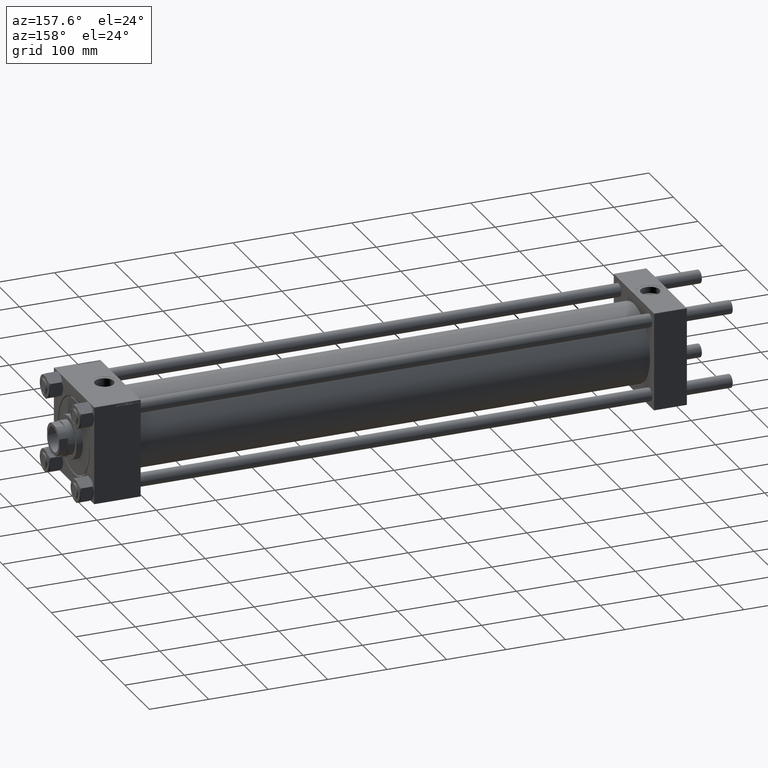
[diagram: clean part render]
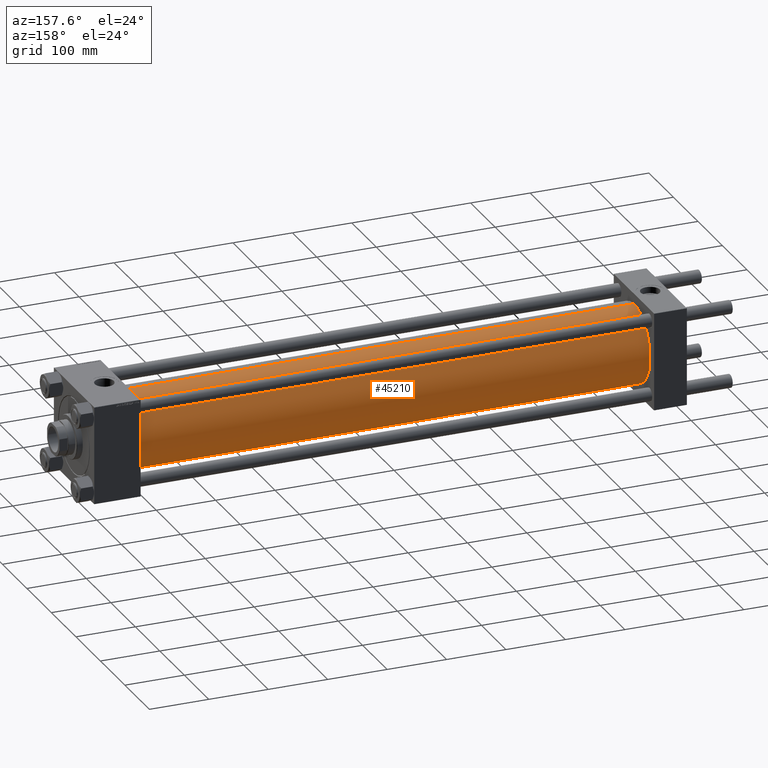
[diagram: same view with one face highlighted and labeled with its STEP entity id]
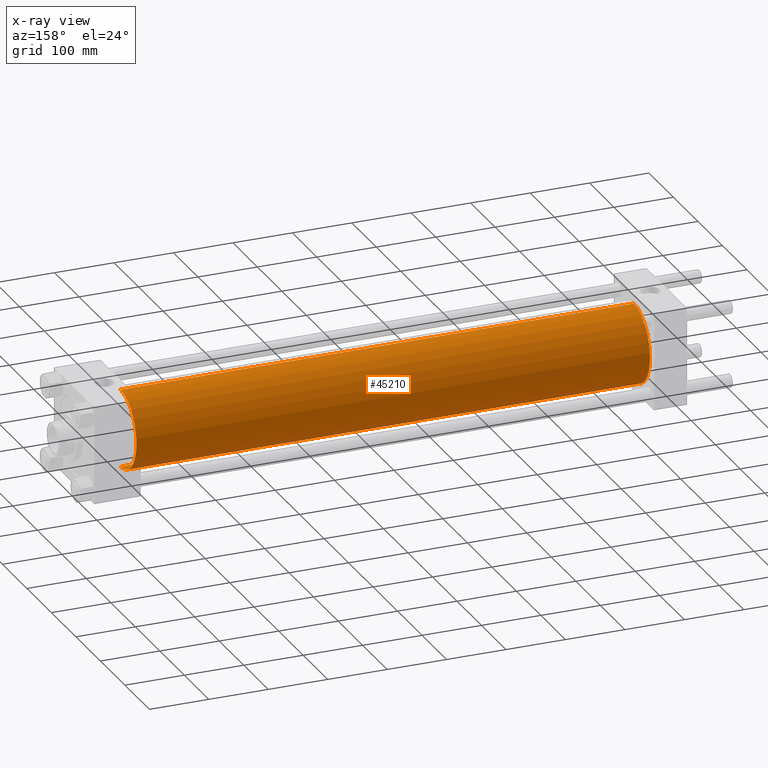
[diagram: x-ray of the same camera — body ghosted, the highlighted face saturated]
A machine part, auxiliary view. The second image highlights one B-rep face of the part: STEP entity #45210.
The next image is the same camera in x-ray: the body ghosted, the highlighted face saturated — about 0% of this face is hidden behind the body in this view.
In plain terms, the highlighted cylindrical surface (partial cylindrical patch) has radius 65.5 mm, axis along (-1, -0, -0).
Its self-contained STEP definition (entity closure, byte-faithful):
#2215 = DIRECTION ( 'NONE',  ( 1.000000000000000000, -0.000000000000000000, -0.000000000000000000 ) ) ;
#2318 = AXIS2_PLACEMENT_3D ( 'NONE', #50056, #7089, #22353 ) ;
#4134 = ORIENTED_EDGE ( 'NONE', *, *, #44234, .F. ) ;
#5167 = AXIS2_PLACEMENT_3D ( 'NONE', #44936, #2215, #14143 ) ;
#7057 = CYLINDRICAL_SURFACE ( 'NONE', #17818, 65.50000000000001421 ) ;
#7089 = DIRECTION ( 'NONE',  ( 1.000000000000000000, 0.000000000000000000, 0.000000000000000000 ) ) ;
#8946 = VECTOR ( 'NONE', #22892, 1000.000000000000000 ) ;
#9820 = EDGE_CURVE ( 'NONE', #18705, #48135, #39154, .T. ) ;
#11432 = ORIENTED_EDGE ( 'NONE', *, *, #17698, .T. ) ;
#14143 = DIRECTION ( 'NONE',  ( 0.000000000000000000, 0.000000000000000000, 1.000000000000000000 ) ) ;
#14598 = VECTOR ( 'NONE', #48635, 1000.000000000000000 ) ;
#14624 = VERTEX_POINT ( 'NONE', #19604 ) ;
#14686 = FACE_OUTER_BOUND ( 'NONE', #37475, .T. ) ;
#17120 = CARTESIAN_POINT ( 'NONE',  ( 919.0000000000000000, 8.021436534415166404E-15, -65.50000000000001421 ) ) ;
#17698 = EDGE_CURVE ( 'NONE', #14624, #48135, #25457, .T. ) ;
#17818 = AXIS2_PLACEMENT_3D ( 'NONE', #33516, #22080, #19006 ) ;
#18408 = VERTEX_POINT ( 'NONE', #46464 ) ;
#18705 = VERTEX_POINT ( 'NONE', #27066 ) ;
#19006 = DIRECTION ( 'NONE',  ( 0.000000000000000000, 0.000000000000000000, 1.000000000000000000 ) ) ;
#19604 = CARTESIAN_POINT ( 'NONE',  ( 55.00000000000004974, 8.021436534415166404E-15, -65.50000000000001421 ) ) ;
#21193 = LINE ( 'NONE', #17120, #14598 ) ;
#22080 = DIRECTION ( 'NONE',  ( -1.000000000000000000, -0.000000000000000000, -0.000000000000000000 ) ) ;
#22353 = DIRECTION ( 'NONE',  ( 0.000000000000000000, 0.000000000000000000, -1.000000000000000000 ) ) ;
#22555 = ORIENTED_EDGE ( 'NONE', *, *, #30945, .T. ) ;
#22892 = DIRECTION ( 'NONE',  ( -1.000000000000000000, -0.000000000000000000, -0.000000000000000000 ) ) ;
#24243 = CIRCLE ( 'NONE', #2318, 65.50000000000001421 ) ;
#25457 = CIRCLE ( 'NONE', #5167, 65.50000000000001421 ) ;
#27066 = CARTESIAN_POINT ( 'NONE',  ( 919.0000000000000000, 0.000000000000000000, 65.50000000000001421 ) ) ;
#30945 = EDGE_CURVE ( 'NONE', #18408, #14624, #21193, .T. ) ;
#33516 = CARTESIAN_POINT ( 'NONE',  ( 919.0000000000000000, 0.000000000000000000, 0.000000000000000000 ) ) ;
#35468 = ORIENTED_EDGE ( 'NONE', *, *, #9820, .F. ) ;
#37475 = EDGE_LOOP ( 'NONE', ( #4134, #22555, #11432, #35468 ) ) ;
#39154 = LINE ( 'NONE', #46547, #8946 ) ;
#44234 = EDGE_CURVE ( 'NONE', #18408, #18705, #24243, .T. ) ;
#44936 = CARTESIAN_POINT ( 'NONE',  ( 55.00000000000004974, 0.000000000000000000, 0.000000000000000000 ) ) ;
#45210 = ADVANCED_FACE ( 'NONE', ( #14686 ), #7057, .T. ) ;
#46193 = CARTESIAN_POINT ( 'NONE',  ( 55.00000000000004974, 0.000000000000000000, 65.50000000000001421 ) ) ;
#46464 = CARTESIAN_POINT ( 'NONE',  ( 919.0000000000000000, 8.021436534415166404E-15, -65.50000000000001421 ) ) ;
#46547 = CARTESIAN_POINT ( 'NONE',  ( 919.0000000000000000, 0.000000000000000000, 65.50000000000001421 ) ) ;
#48135 = VERTEX_POINT ( 'NONE', #46193 ) ;
#48635 = DIRECTION ( 'NONE',  ( -1.000000000000000000, -0.000000000000000000, -0.000000000000000000 ) ) ;
#50056 = CARTESIAN_POINT ( 'NONE',  ( 919.0000000000000000, 0.000000000000000000, 0.000000000000000000 ) ) ;